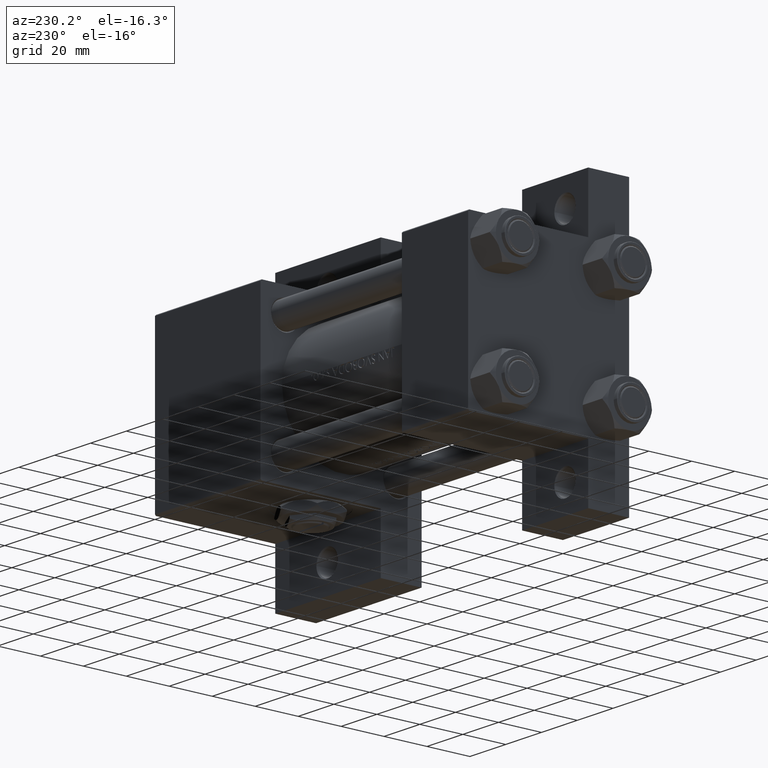
[diagram: clean part render]
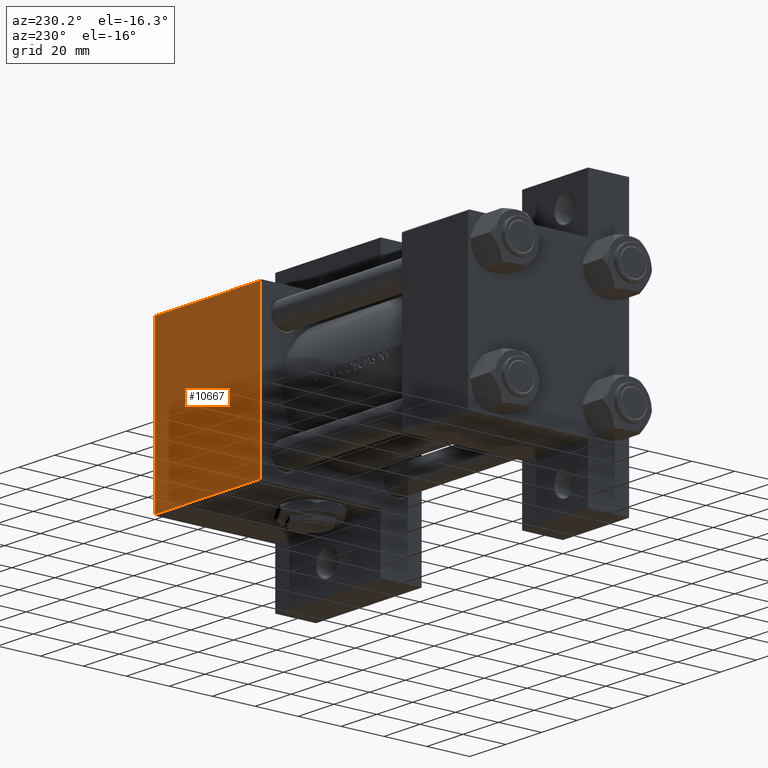
[diagram: same view with one face highlighted and labeled with its STEP entity id]
A machine part, auxiliary view. The second image highlights one B-rep face of the part: STEP entity #10667.
In plain terms, the highlighted planar face has unit normal (0, -1, -0).
Its self-contained STEP definition (entity closure, byte-faithful):
#1175 = DIRECTION ( 'NONE',  ( -1.000000000000000000, 0.000000000000000000, 0.000000000000000000 ) ) ;
#1285 = CARTESIAN_POINT ( 'NONE',  ( 175.0000000000000000, 37.50000000000000000, 37.49999999999999289 ) ) ;
#2060 = ORIENTED_EDGE ( 'NONE', *, *, #8022, .T. ) ;
#4093 = ORIENTED_EDGE ( 'NONE', *, *, #13253, .T. ) ;
#4550 = CARTESIAN_POINT ( 'NONE',  ( 175.0000000000000000, 37.50000000000000000, 37.49999999999999289 ) ) ;
#6991 = LINE ( 'NONE', #22197, #42851 ) ;
#8022 = EDGE_CURVE ( 'NONE', #26877, #8604, #33188, .T. ) ;
#8285 = PLANE ( 'NONE',  #46964 ) ;
#8604 = VERTEX_POINT ( 'NONE', #40070 ) ;
#8767 = LINE ( 'NONE', #1285, #13371 ) ;
#8936 = VECTOR ( 'NONE', #1175, 1000.000000000000000 ) ;
#9937 = EDGE_LOOP ( 'NONE', ( #27518, #4093, #2060, #40213 ) ) ;
#10667 = ADVANCED_FACE ( 'NONE', ( #46372 ), #8285, .F. ) ;
#11440 = CARTESIAN_POINT ( 'NONE',  ( 175.0000000000000000, 37.00000000000000000, 37.49999999999999289 ) ) ;
#13253 = EDGE_CURVE ( 'NONE', #49102, #26877, #40033, .T. ) ;
#13371 = VECTOR ( 'NONE', #46613, 1000.000000000000000 ) ;
#13714 = VERTEX_POINT ( 'NONE', #42121 ) ;
#16251 = DIRECTION ( 'NONE',  ( 0.000000000000000000, 1.850371707708594316E-16, -1.000000000000000000 ) ) ;
#16868 = CARTESIAN_POINT ( 'NONE',  ( 115.9999999999999858, 37.00000000000000000, 37.49999999999999289 ) ) ;
#18501 = CARTESIAN_POINT ( 'NONE',  ( 115.9999999999999858, 37.50000000000000000, 37.49999999999999289 ) ) ;
#22197 = CARTESIAN_POINT ( 'NONE',  ( 175.0000000000000000, -37.00000000000000000, 37.49999999999997868 ) ) ;
#22938 = EDGE_CURVE ( 'NONE', #49102, #13714, #8767, .T. ) ;
#23177 = EDGE_CURVE ( 'NONE', #8604, #13714, #6991, .T. ) ;
#26670 = DIRECTION ( 'NONE',  ( 1.000000000000000000, 0.000000000000000000, 0.000000000000000000 ) ) ;
#26877 = VERTEX_POINT ( 'NONE', #48270 ) ;
#27518 = ORIENTED_EDGE ( 'NONE', *, *, #22938, .F. ) ;
#33188 = LINE ( 'NONE', #18501, #42969 ) ;
#40033 = LINE ( 'NONE', #16868, #8936 ) ;
#40070 = CARTESIAN_POINT ( 'NONE',  ( 115.9999999999999858, -37.00000000000000000, 37.49999999999997868 ) ) ;
#40213 = ORIENTED_EDGE ( 'NONE', *, *, #23177, .T. ) ;
#42121 = CARTESIAN_POINT ( 'NONE',  ( 175.0000000000000000, -37.00000000000000000, 37.49999999999997868 ) ) ;
#42656 = DIRECTION ( 'NONE',  ( 0.000000000000000000, 1.000000000000000000, 1.850371707708594316E-16 ) ) ;
#42851 = VECTOR ( 'NONE', #26670, 1000.000000000000000 ) ;
#42969 = VECTOR ( 'NONE', #48367, 1000.000000000000000 ) ;
#46372 = FACE_OUTER_BOUND ( 'NONE', #9937, .T. ) ;
#46613 = DIRECTION ( 'NONE',  ( 0.000000000000000000, -1.000000000000000000, -1.850371707708594316E-16 ) ) ;
#46964 = AXIS2_PLACEMENT_3D ( 'NONE', #4550, #16251, #42656 ) ;
#48270 = CARTESIAN_POINT ( 'NONE',  ( 115.9999999999999858, 37.00000000000000000, 37.49999999999999289 ) ) ;
#48367 = DIRECTION ( 'NONE',  ( 0.000000000000000000, -1.000000000000000000, -1.850371707708594316E-16 ) ) ;
#49102 = VERTEX_POINT ( 'NONE', #11440 ) ;